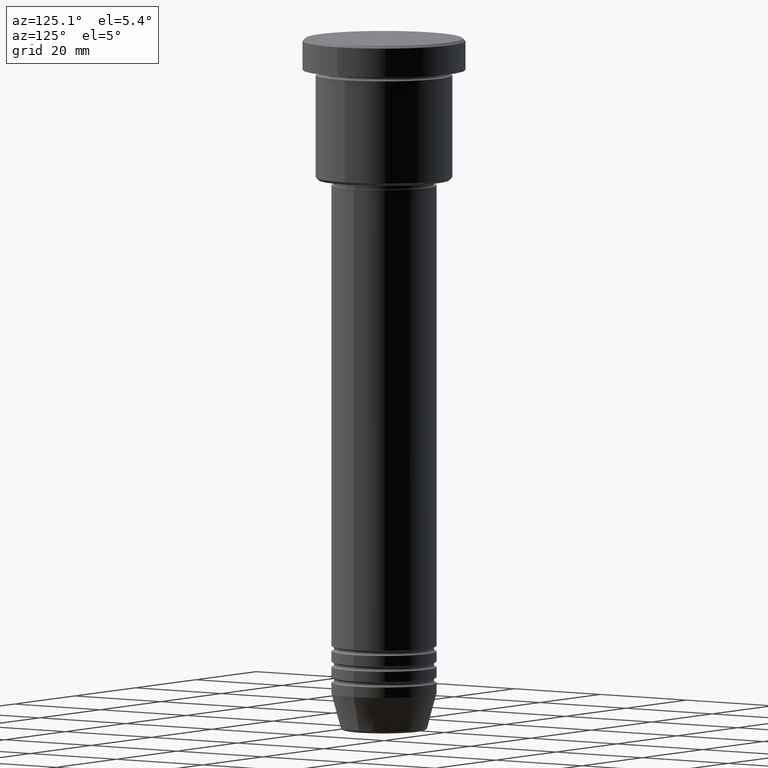
[diagram: clean part render]
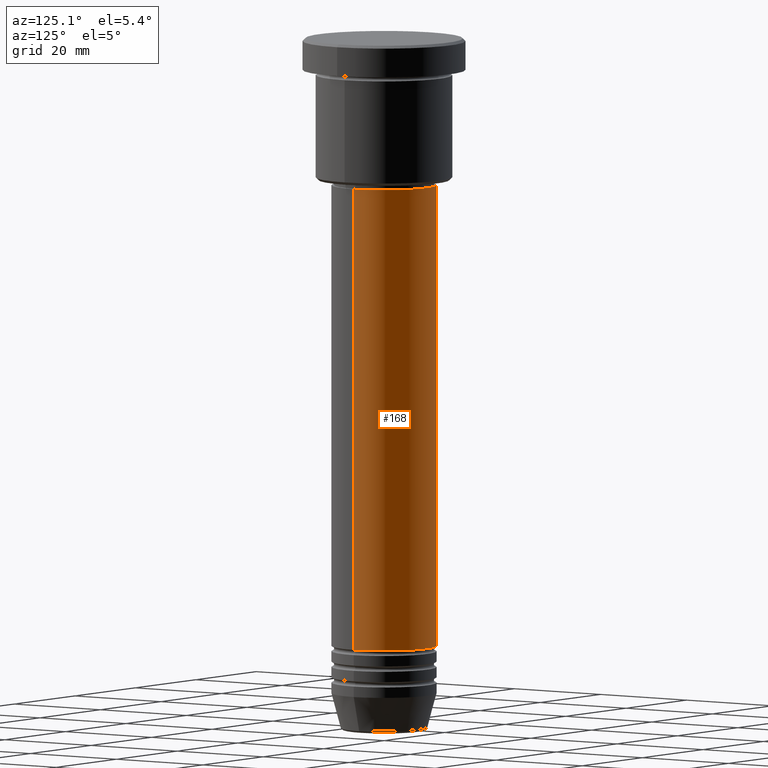
[diagram: same view with one face highlighted and labeled with its STEP entity id]
A machine part, auxiliary view. The second image highlights one B-rep face of the part: STEP entity #168.
In plain terms, the highlighted cylindrical surface (partial cylindrical patch) has radius 10 mm, axis along (-0, -0, 1).
Its self-contained STEP definition (entity closure, byte-faithful):
#11 = ORIENTED_EDGE ( 'NONE', *, *, #937, .T. ) ;
#12 = CARTESIAN_POINT ( 'NONE',  ( 0.000000000000000000, 0.000000000000000000, -115.9999999999999574 ) ) ;
#37 = ORIENTED_EDGE ( 'NONE', *, *, #514, .F. ) ;
#64 = FACE_OUTER_BOUND ( 'NONE', #829, .T. ) ;
#102 = VERTEX_POINT ( 'NONE', #960 ) ;
#106 = DIRECTION ( 'NONE',  ( -0.000000000000000000, -0.000000000000000000, 1.000000000000000000 ) ) ;
#124 = LINE ( 'NONE', #228, #432 ) ;
#168 = ADVANCED_FACE ( 'NONE', ( #64 ), #452, .T. ) ;
#180 = CARTESIAN_POINT ( 'NONE',  ( 0.000000000000000000, 0.000000000000000000, 0.000000000000000000 ) ) ;
#228 = CARTESIAN_POINT ( 'NONE',  ( 10.00000000000000000, 0.000000000000000000, 0.000000000000000000 ) ) ;
#284 = CARTESIAN_POINT ( 'NONE',  ( -10.00000000000000000, 1.224646799147353256E-15, 0.000000000000000000 ) ) ;
#318 = DIRECTION ( 'NONE',  ( -0.000000000000000000, -0.000000000000000000, 1.000000000000000000 ) ) ;
#323 = VERTEX_POINT ( 'NONE', #685 ) ;
#432 = VECTOR ( 'NONE', #599, 1000.000000000000000 ) ;
#434 = VERTEX_POINT ( 'NONE', #598 ) ;
#452 = CYLINDRICAL_SURFACE ( 'NONE', #853, 10.00000000000000000 ) ;
#474 = DIRECTION ( 'NONE',  ( -0.000000000000000000, -0.000000000000000000, 1.000000000000000000 ) ) ;
#483 = DIRECTION ( 'NONE',  ( 1.000000000000000000, 0.000000000000000000, 0.000000000000000000 ) ) ;
#514 = EDGE_CURVE ( 'NONE', #323, #102, #124, .T. ) ;
#567 = CIRCLE ( 'NONE', #681, 10.00000000000000000 ) ;
#598 = CARTESIAN_POINT ( 'NONE',  ( -10.00000000000000000, 1.224646799147353256E-15, -28.00000000000000355 ) ) ;
#599 = DIRECTION ( 'NONE',  ( -0.000000000000000000, -0.000000000000000000, 1.000000000000000000 ) ) ;
#628 = CIRCLE ( 'NONE', #928, 10.00000000000000000 ) ;
#659 = CARTESIAN_POINT ( 'NONE',  ( 0.000000000000000000, 0.000000000000000000, -28.00000000000000355 ) ) ;
#681 = AXIS2_PLACEMENT_3D ( 'NONE', #12, #106, #931 ) ;
#685 = CARTESIAN_POINT ( 'NONE',  ( 10.00000000000000000, 0.000000000000000000, -115.9999999999999574 ) ) ;
#697 = EDGE_CURVE ( 'NONE', #102, #434, #628, .T. ) ;
#723 = DIRECTION ( 'NONE',  ( -0.000000000000000000, -0.000000000000000000, 1.000000000000000000 ) ) ;
#822 = DIRECTION ( 'NONE',  ( 1.000000000000000000, 0.000000000000000000, 0.000000000000000000 ) ) ;
#829 = EDGE_LOOP ( 'NONE', ( #1118, #11, #897, #37 ) ) ;
#853 = AXIS2_PLACEMENT_3D ( 'NONE', #180, #723, #822 ) ;
#872 = VECTOR ( 'NONE', #474, 1000.000000000000000 ) ;
#887 = EDGE_CURVE ( 'NONE', #323, #1121, #567, .T. ) ;
#897 = ORIENTED_EDGE ( 'NONE', *, *, #697, .F. ) ;
#928 = AXIS2_PLACEMENT_3D ( 'NONE', #659, #318, #483 ) ;
#931 = DIRECTION ( 'NONE',  ( 1.000000000000000000, 0.000000000000000000, 0.000000000000000000 ) ) ;
#937 = EDGE_CURVE ( 'NONE', #1121, #434, #1103, .T. ) ;
#960 = CARTESIAN_POINT ( 'NONE',  ( 10.00000000000000000, 0.000000000000000000, -28.00000000000000355 ) ) ;
#1030 = CARTESIAN_POINT ( 'NONE',  ( -10.00000000000000000, 1.224646799147353256E-15, -115.9999999999999574 ) ) ;
#1103 = LINE ( 'NONE', #284, #872 ) ;
#1118 = ORIENTED_EDGE ( 'NONE', *, *, #887, .T. ) ;
#1121 = VERTEX_POINT ( 'NONE', #1030 ) ;